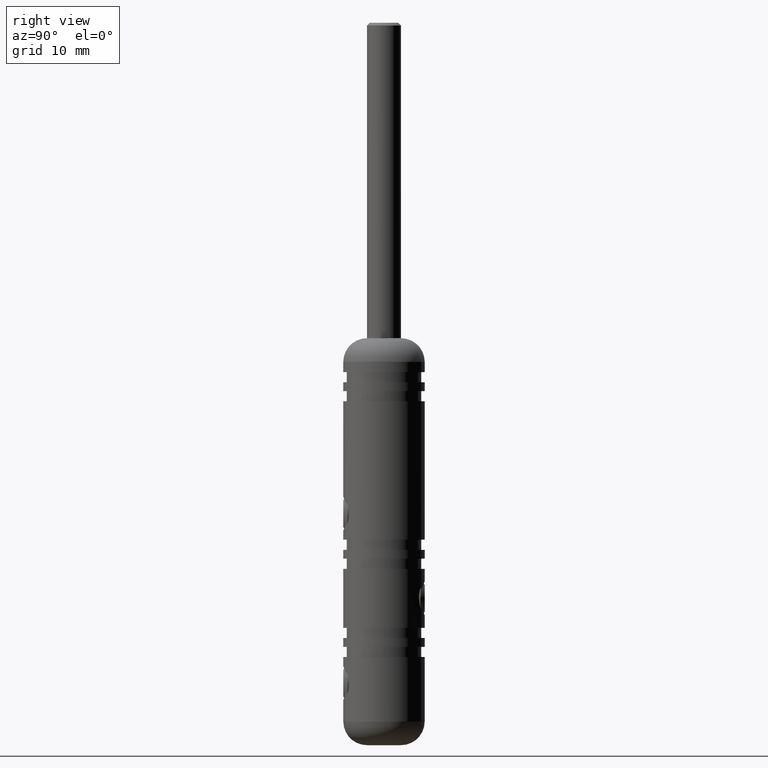
[diagram: clean part render]
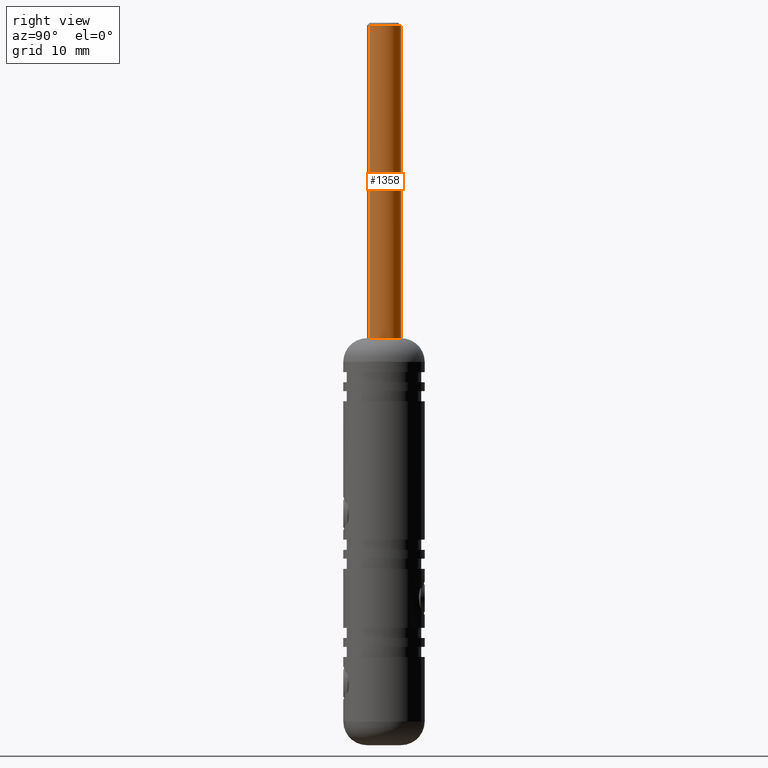
[diagram: same view with one face highlighted and labeled with its STEP entity id]
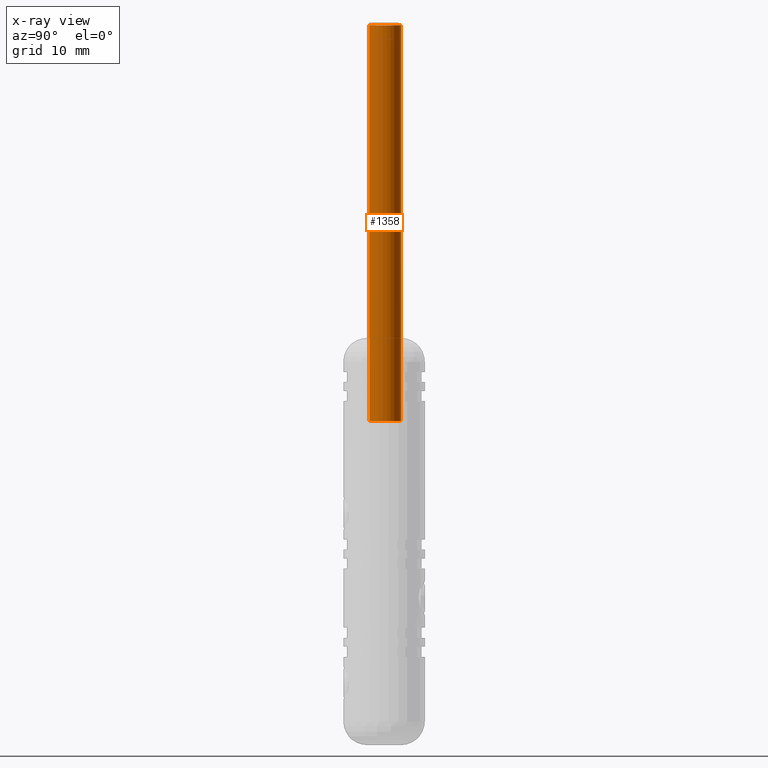
[diagram: x-ray of the same camera — body ghosted, the highlighted face saturated]
A machine part, right view. The second image highlights one B-rep face of the part: STEP entity #1358.
The next image is the same camera in x-ray: the body ghosted, the highlighted face saturated — about 0% of this face is hidden behind the body in this view.
In plain terms, the highlighted cylindrical surface (edge-blend (fillet) strip) has radius 2.5 mm, axis along (0, 0, 1).
Its self-contained STEP definition (entity closure, byte-faithful):
#1209 = DIRECTION ( 'NONE',  ( -0.0000000000000000000, -0.0000000000000000000, 1.000000000000000000 ) ) ;
#1340 = LINE ( 'NONE', #10281, #15529 ) ;
#1358 = ADVANCED_FACE ( 'NONE', ( #4516 ), #11881, .T. ) ;
#2228 = CARTESIAN_POINT ( 'NONE',  ( 2.500000000000000000, 0.0000000000000000000, -0.4000000000000011300 ) ) ;
#2510 = VECTOR ( 'NONE', #5408, 1000.000000000000000 ) ;
#2673 = ORIENTED_EDGE ( 'NONE', *, *, #6412, .T. ) ;
#3041 = VERTEX_POINT ( 'NONE', #10154 ) ;
#3188 = CARTESIAN_POINT ( 'NONE',  ( 2.500000000000000000, 0.0000000000000000000, -58.75000000000000700 ) ) ;
#3647 = DIRECTION ( 'NONE',  ( -0.0000000000000000000, -0.0000000000000000000, 1.000000000000000000 ) ) ;
#3737 = EDGE_CURVE ( 'NONE', #4365, #12864, #1340, .T. ) ;
#3888 = DIRECTION ( 'NONE',  ( 1.000000000000000000, 0.0000000000000000000, 0.0000000000000000000 ) ) ;
#4365 = VERTEX_POINT ( 'NONE', #3188 ) ;
#4516 = FACE_OUTER_BOUND ( 'NONE', #8570, .T. ) ;
#5371 = AXIS2_PLACEMENT_3D ( 'NONE', #13325, #1209, #3888 ) ;
#5376 = EDGE_CURVE ( 'NONE', #15845, #12864, #8425, .T. ) ;
#5408 = DIRECTION ( 'NONE',  ( -0.0000000000000000000, -0.0000000000000000000, 1.000000000000000000 ) ) ;
#6004 = DIRECTION ( 'NONE',  ( 0.0000000000000000000, 0.0000000000000000000, -1.000000000000000000 ) ) ;
#6412 = EDGE_CURVE ( 'NONE', #4365, #3041, #9656, .T. ) ;
#6903 = AXIS2_PLACEMENT_3D ( 'NONE', #15201, #16554, #7626 ) ;
#7032 = CARTESIAN_POINT ( 'NONE',  ( -2.500000000000000000, 3.061616997868383100E-016, -0.4000000000000011300 ) ) ;
#7269 = EDGE_CURVE ( 'NONE', #3041, #15845, #7967, .T. ) ;
#7626 = DIRECTION ( 'NONE',  ( 1.000000000000000000, 0.0000000000000000000, 0.0000000000000000000 ) ) ;
#7967 = LINE ( 'NONE', #16193, #2510 ) ;
#8425 = CIRCLE ( 'NONE', #14411, 2.500000000000000000 ) ;
#8522 = DIRECTION ( 'NONE',  ( -1.000000000000000000, 0.0000000000000000000, 0.0000000000000000000 ) ) ;
#8570 = EDGE_LOOP ( 'NONE', ( #2673, #15885, #14189, #11939 ) ) ;
#8635 = CARTESIAN_POINT ( 'NONE',  ( 0.0000000000000000000, 0.0000000000000000000, -0.4000000000000011300 ) ) ;
#9656 = CIRCLE ( 'NONE', #5371, 2.500000000000000000 ) ;
#10154 = CARTESIAN_POINT ( 'NONE',  ( -2.500000000000000000, 3.061616997868383100E-016, -58.75000000000000700 ) ) ;
#10281 = CARTESIAN_POINT ( 'NONE',  ( 2.500000000000000000, 0.0000000000000000000, 0.0000000000000000000 ) ) ;
#11881 = CYLINDRICAL_SURFACE ( 'NONE', #6903, 2.500000000000000000 ) ;
#11939 = ORIENTED_EDGE ( 'NONE', *, *, #3737, .F. ) ;
#12864 = VERTEX_POINT ( 'NONE', #2228 ) ;
#13325 = CARTESIAN_POINT ( 'NONE',  ( 0.0000000000000000000, 0.0000000000000000000, -58.75000000000000700 ) ) ;
#14189 = ORIENTED_EDGE ( 'NONE', *, *, #5376, .T. ) ;
#14411 = AXIS2_PLACEMENT_3D ( 'NONE', #8635, #6004, #8522 ) ;
#15201 = CARTESIAN_POINT ( 'NONE',  ( 0.0000000000000000000, 0.0000000000000000000, 0.0000000000000000000 ) ) ;
#15529 = VECTOR ( 'NONE', #3647, 1000.000000000000000 ) ;
#15845 = VERTEX_POINT ( 'NONE', #7032 ) ;
#15885 = ORIENTED_EDGE ( 'NONE', *, *, #7269, .T. ) ;
#16193 = CARTESIAN_POINT ( 'NONE',  ( -2.500000000000000000, 3.061616997868383100E-016, 0.0000000000000000000 ) ) ;
#16554 = DIRECTION ( 'NONE',  ( -0.0000000000000000000, -0.0000000000000000000, 1.000000000000000000 ) ) ;